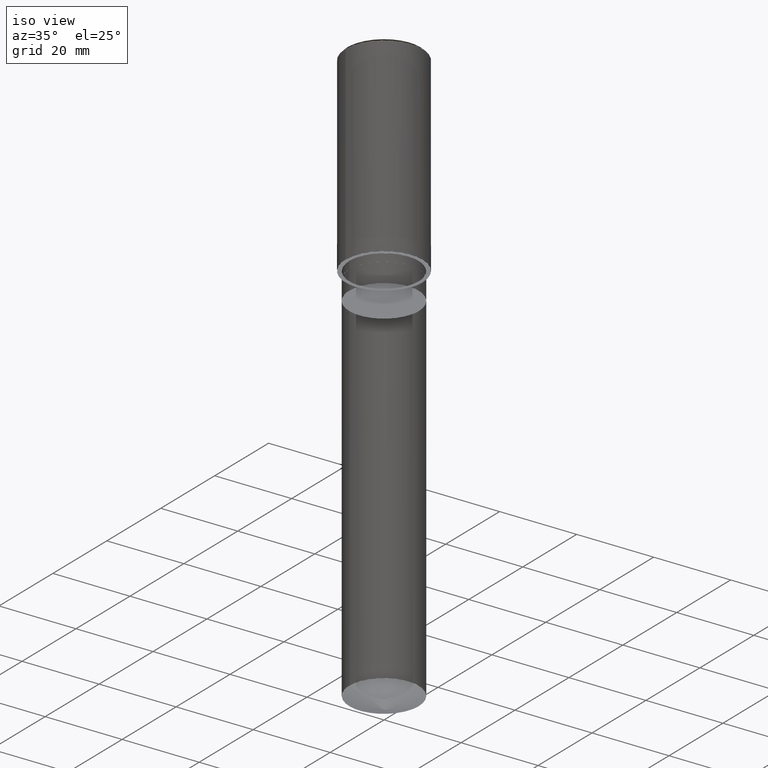
[diagram: clean part render]
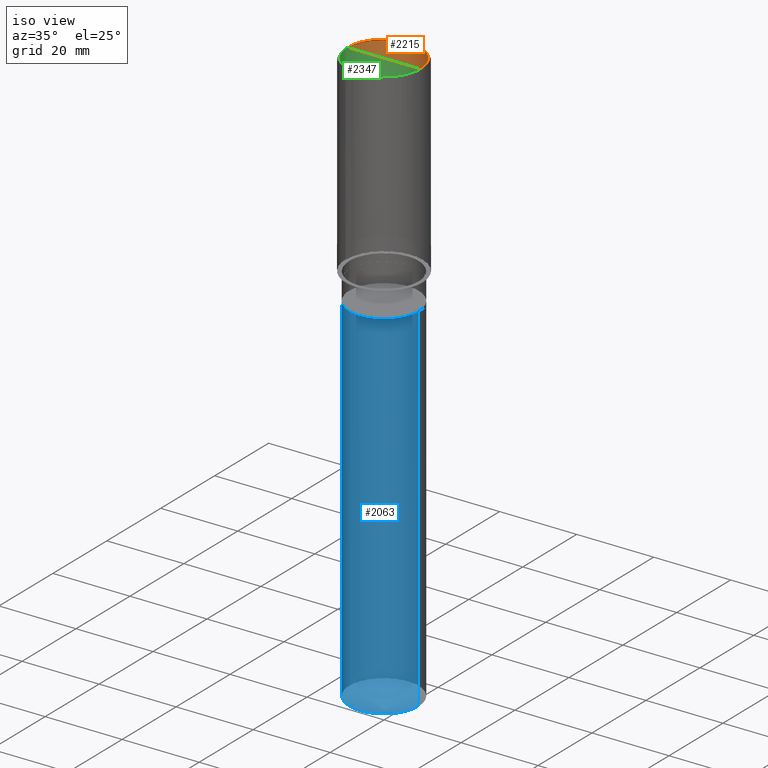
[diagram: same view with three faces highlighted in distinct colors, each labeled with its STEP entity id]
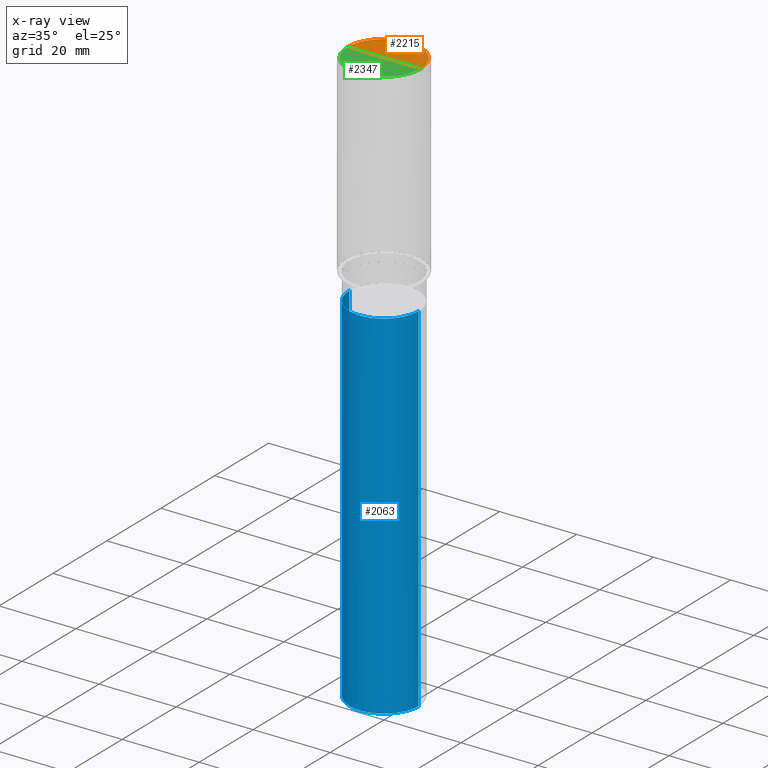
[diagram: x-ray of the same camera — body ghosted, the three highlighted faces saturated]
A machine part, iso view with three faces highlighted in distinct colors.
The next image is the same camera in x-ray (body ghosted, the three faces saturated) — at least one of them is partly hidden behind the body in this view.
Their STEP definitions:

[orange] entity #2215 — the highlighted face is a freeform B-spline surface patch.
#1950=CARTESIAN_POINT('',(9.5,0.0,50.0));
#1951=CARTESIAN_POINT('',(9.5,9.5,50.0));
#1952=CARTESIAN_POINT('',(0.0,9.5,50.0));
#1953=CARTESIAN_POINT('',(-9.5,9.5,50.0));
#1954=CARTESIAN_POINT('',(-9.5,0.0,50.0));
#1955=CARTESIAN_POINT('',(0.0,0.0,50.0));
#2200=(
BOUNDED_SURFACE()
B_SPLINE_SURFACE(1,2,(
(#1950,#1951,#1952,#1953,#1954),
(#1955,#1955,#1955,#1955,#1955)
), .UNSPECIFIED.,.F.,.F.,.F.)
B_SPLINE_SURFACE_WITH_KNOTS((2,2),(3,2,3),(
0.0,1.0),(
0.0,0.5,1.0), .UNSPECIFIED.)
GEOMETRIC_REPRESENTATION_ITEM()
RATIONAL_B_SPLINE_SURFACE(((1.0,0.707106781187,1.0,0.707106781187,1.0),
(1.0,0.707106781187,1.0,0.707106781187,1.0)
))
REPRESENTATION_ITEM('')
SURFACE()
);
#2201=(
BOUNDED_CURVE()
B_SPLINE_CURVE(2,(#1954,#1953,#1952,#1951,#1950),.UNSPECIFIED.,.F.,.F.)
B_SPLINE_CURVE_WITH_KNOTS((3,2,3),
(0.0,0.5,1.0),.UNSPECIFIED.)
CURVE()
GEOMETRIC_REPRESENTATION_ITEM()
RATIONAL_B_SPLINE_CURVE((1.0,0.707106781187,1.0,0.707106781187,1.0))
REPRESENTATION_ITEM('')
);
#2202=(
BOUNDED_CURVE()
B_SPLINE_CURVE(1,(#1950,#1955),.UNSPECIFIED.,.F.,.F.)
B_SPLINE_CURVE_WITH_KNOTS((2,2),
(0.0,1.0),.UNSPECIFIED.)
CURVE()
GEOMETRIC_REPRESENTATION_ITEM()
RATIONAL_B_SPLINE_CURVE((1.0,1.0))
REPRESENTATION_ITEM('')
);
#2203=(
BOUNDED_CURVE()
B_SPLINE_CURVE(1,(#1955,#1954),.UNSPECIFIED.,.F.,.F.)
B_SPLINE_CURVE_WITH_KNOTS((2,2),
(0.0,1.0),.UNSPECIFIED.)
CURVE()
GEOMETRIC_REPRESENTATION_ITEM()
RATIONAL_B_SPLINE_CURVE((1.0,1.0))
REPRESENTATION_ITEM('')
);
#2204=VERTEX_POINT('',#1950);
#2205=VERTEX_POINT('',#1954);
#2206=VERTEX_POINT('',#1955);
#2207=EDGE_CURVE('',#2205,#2204,#2201,.T.);
#2208=EDGE_CURVE('',#2204,#2206,#2202,.T.);
#2209=EDGE_CURVE('',#2206,#2205,#2203,.T.);
#2210=ORIENTED_EDGE('',*,*,#2207,.T.);
#2211=ORIENTED_EDGE('',*,*,#2208,.T.);
#2212=ORIENTED_EDGE('',*,*,#2209,.T.);
#2213=EDGE_LOOP('',(#2210,#2211,#2212));
#2214=FACE_OUTER_BOUND('',#2213,.T.);
#2215=ADVANCED_FACE('',(#2214),#2200,.T.);

[blue] entity #2063 — the highlighted face is a freeform B-spline surface patch.
#1913=CARTESIAN_POINT('',(9.0,0.0,-99.724267891604));
#1917=CARTESIAN_POINT('',(-9.0,0.0,-99.724267891604));
#1918=CARTESIAN_POINT('',(9.0,0.0,-7.0));
#1922=CARTESIAN_POINT('',(-9.0,0.0,-7.0));
#1924=CARTESIAN_POINT('',(-9.0,-9.0,-99.724267891604));
#1925=CARTESIAN_POINT('',(0.0,-9.0,-99.724267891604));
#1926=CARTESIAN_POINT('',(9.0,-9.0,-99.724267891604));
#1927=CARTESIAN_POINT('',(-9.0,-9.0,-7.0));
#1928=CARTESIAN_POINT('',(0.0,-9.0,-7.0));
#1929=CARTESIAN_POINT('',(9.0,-9.0,-7.0));
#2044=(
BOUNDED_SURFACE()
B_SPLINE_SURFACE(1,2,(
(#1917,#1924,#1925,#1926,#1913),
(#1922,#1927,#1928,#1929,#1918)
), .UNSPECIFIED.,.F.,.F.,.F.)
B_SPLINE_SURFACE_WITH_KNOTS((2,2),(3,2,3),(
0.0,1.0),(
0.0,0.5,1.0), .UNSPECIFIED.)
GEOMETRIC_REPRESENTATION_ITEM()
RATIONAL_B_SPLINE_SURFACE(((1.0,0.707106781187,1.0,0.707106781187,1.0),
(1.0,0.707106781187,1.0,0.707106781187,1.0)
))
REPRESENTATION_ITEM('')
SURFACE()
);
#2045=(
BOUNDED_CURVE()
B_SPLINE_CURVE(2,(#1913,#1926,#1925,#1924,#1917),.UNSPECIFIED.,.F.,.F.)
B_SPLINE_CURVE_WITH_KNOTS((3,2,3),
(0.0,0.5,1.0),.UNSPECIFIED.)
CURVE()
GEOMETRIC_REPRESENTATION_ITEM()
RATIONAL_B_SPLINE_CURVE((1.0,0.707106781187,1.0,0.707106781187,1.0))
REPRESENTATION_ITEM('')
);
#2046=(
BOUNDED_CURVE()
B_SPLINE_CURVE(1,(#1917,#1922),.UNSPECIFIED.,.F.,.F.)
B_SPLINE_CURVE_WITH_KNOTS((2,2),
(0.0,1.0),.UNSPECIFIED.)
CURVE()
GEOMETRIC_REPRESENTATION_ITEM()
RATIONAL_B_SPLINE_CURVE((1.0,1.0))
REPRESENTATION_ITEM('')
);
#2047=(
BOUNDED_CURVE()
B_SPLINE_CURVE(2,(#1922,#1927,#1928,#1929,#1918),.UNSPECIFIED.,.F.,.F.)
B_SPLINE_CURVE_WITH_KNOTS((3,2,3),
(0.0,0.5,1.0),.UNSPECIFIED.)
CURVE()
GEOMETRIC_REPRESENTATION_ITEM()
RATIONAL_B_SPLINE_CURVE((1.0,0.707106781187,1.0,0.707106781187,1.0))
REPRESENTATION_ITEM('')
);
#2048=(
BOUNDED_CURVE()
B_SPLINE_CURVE(1,(#1918,#1913),.UNSPECIFIED.,.F.,.F.)
B_SPLINE_CURVE_WITH_KNOTS((2,2),
(0.0,1.0),.UNSPECIFIED.)
CURVE()
GEOMETRIC_REPRESENTATION_ITEM()
RATIONAL_B_SPLINE_CURVE((1.0,1.0))
REPRESENTATION_ITEM('')
);
#2049=VERTEX_POINT('',#1913);
#2050=VERTEX_POINT('',#1917);
#2051=VERTEX_POINT('',#1918);
#2052=VERTEX_POINT('',#1922);
#2053=EDGE_CURVE('',#2049,#2050,#2045,.T.);
#2054=EDGE_CURVE('',#2050,#2052,#2046,.T.);
#2055=EDGE_CURVE('',#2052,#2051,#2047,.T.);
#2056=EDGE_CURVE('',#2051,#2049,#2048,.T.);
#2057=ORIENTED_EDGE('',*,*,#2053,.T.);
#2058=ORIENTED_EDGE('',*,*,#2054,.T.);
#2059=ORIENTED_EDGE('',*,*,#2055,.T.);
#2060=ORIENTED_EDGE('',*,*,#2056,.T.);
#2061=EDGE_LOOP('',(#2057,#2058,#2059,#2060));
#2062=FACE_OUTER_BOUND('',#2061,.T.);
#2063=ADVANCED_FACE('',(#2062),#2044,.T.);

[green] entity #2347 — the highlighted face is a freeform B-spline surface patch.
#1950=CARTESIAN_POINT('',(9.5,0.0,50.0));
#1954=CARTESIAN_POINT('',(-9.5,0.0,50.0));
#1955=CARTESIAN_POINT('',(0.0,0.0,50.0));
#1968=CARTESIAN_POINT('',(-9.5,-9.5,50.0));
#1969=CARTESIAN_POINT('',(0.0,-9.5,50.0));
#1970=CARTESIAN_POINT('',(9.5,-9.5,50.0));
#2332=(
BOUNDED_SURFACE()
B_SPLINE_SURFACE(1,2,(
(#1954,#1968,#1969,#1970,#1950),
(#1955,#1955,#1955,#1955,#1955)
), .UNSPECIFIED.,.F.,.F.,.F.)
B_SPLINE_SURFACE_WITH_KNOTS((2,2),(3,2,3),(
0.0,1.0),(
0.0,0.5,1.0), .UNSPECIFIED.)
GEOMETRIC_REPRESENTATION_ITEM()
RATIONAL_B_SPLINE_SURFACE(((1.0,0.707106781187,1.0,0.707106781187,1.0),
(1.0,0.707106781187,1.0,0.707106781187,1.0)
))
REPRESENTATION_ITEM('')
SURFACE()
);
#2333=(
BOUNDED_CURVE()
B_SPLINE_CURVE(2,(#1950,#1970,#1969,#1968,#1954),.UNSPECIFIED.,.F.,.F.)
B_SPLINE_CURVE_WITH_KNOTS((3,2,3),
(0.0,0.5,1.0),.UNSPECIFIED.)
CURVE()
GEOMETRIC_REPRESENTATION_ITEM()
RATIONAL_B_SPLINE_CURVE((1.0,0.707106781187,1.0,0.707106781187,1.0))
REPRESENTATION_ITEM('')
);
#2334=(
BOUNDED_CURVE()
B_SPLINE_CURVE(1,(#1954,#1955),.UNSPECIFIED.,.F.,.F.)
B_SPLINE_CURVE_WITH_KNOTS((2,2),
(0.0,1.0),.UNSPECIFIED.)
CURVE()
GEOMETRIC_REPRESENTATION_ITEM()
RATIONAL_B_SPLINE_CURVE((1.0,1.0))
REPRESENTATION_ITEM('')
);
#2335=(
BOUNDED_CURVE()
B_SPLINE_CURVE(1,(#1955,#1950),.UNSPECIFIED.,.F.,.F.)
B_SPLINE_CURVE_WITH_KNOTS((2,2),
(0.0,1.0),.UNSPECIFIED.)
CURVE()
GEOMETRIC_REPRESENTATION_ITEM()
RATIONAL_B_SPLINE_CURVE((1.0,1.0))
REPRESENTATION_ITEM('')
);
#2336=VERTEX_POINT('',#1950);
#2337=VERTEX_POINT('',#1954);
#2338=VERTEX_POINT('',#1955);
#2339=EDGE_CURVE('',#2336,#2337,#2333,.T.);
#2340=EDGE_CURVE('',#2337,#2338,#2334,.T.);
#2341=EDGE_CURVE('',#2338,#2336,#2335,.T.);
#2342=ORIENTED_EDGE('',*,*,#2339,.T.);
#2343=ORIENTED_EDGE('',*,*,#2340,.T.);
#2344=ORIENTED_EDGE('',*,*,#2341,.T.);
#2345=EDGE_LOOP('',(#2342,#2343,#2344));
#2346=FACE_OUTER_BOUND('',#2345,.T.);
#2347=ADVANCED_FACE('',(#2346),#2332,.T.);